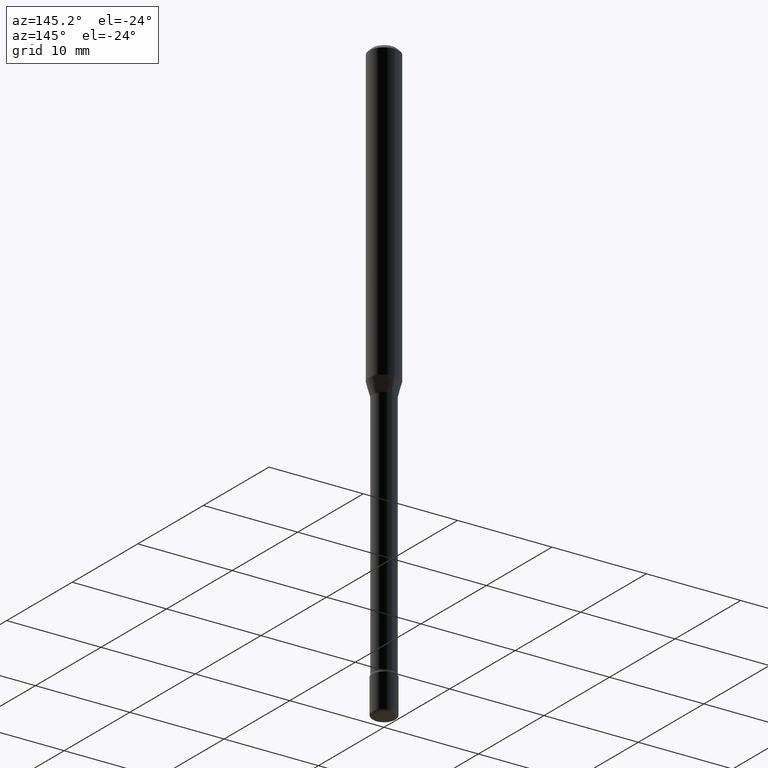
[diagram: clean part render]
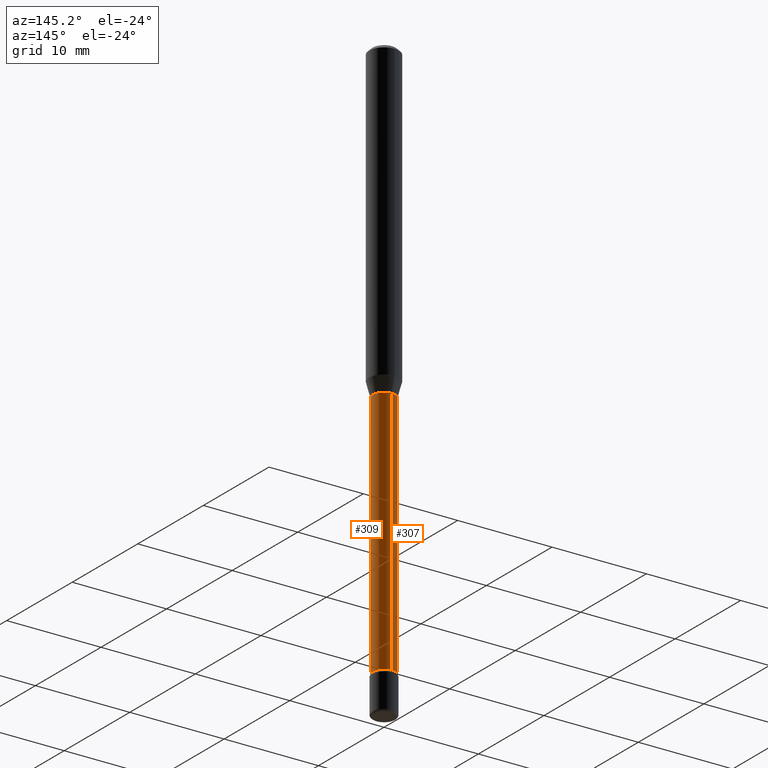
[diagram: same view with one multi-face feature highlighted, each face labeled with its STEP entity id]
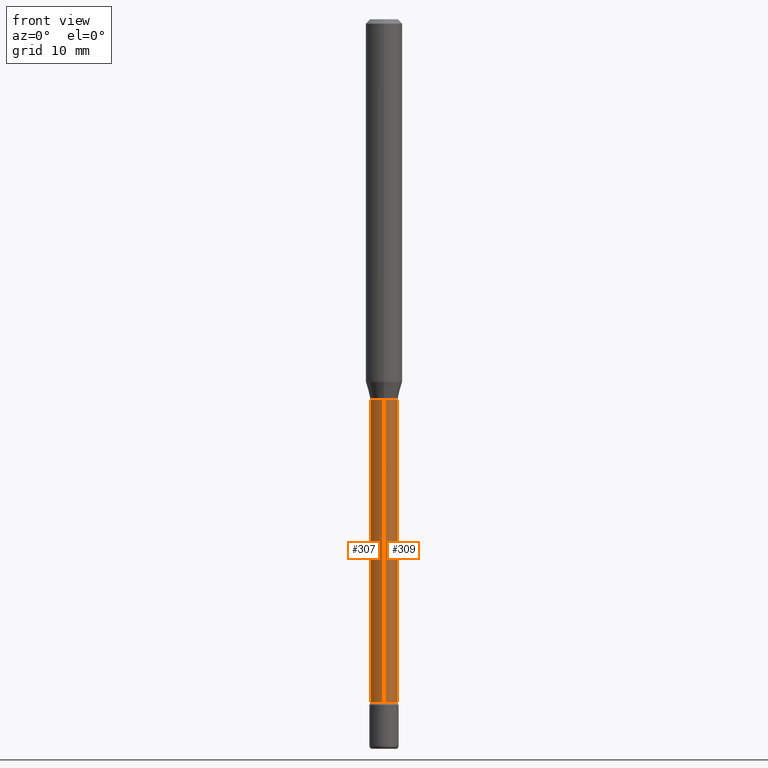
[diagram: same view with one multi-face feature highlighted, each face labeled with its STEP entity id]
A machine part, auxiliary view. The highlighted faces form ONE feature: a constant-radius fillet chain: 2 tangent blend faces with common blend radius 1.1938 mm. The faces share edges in the B-rep.
A second angle (front view) of the same feature is appended — it is thin or edge-on in the first view.
Their STEP definitions:
[1] entity #307 (Cylinder):
#8 = AXIS2_PLACEMENT_3D ( 'NONE', #29, #160, #248 ) ;
#27 = ORIENTED_EDGE ( 'NONE', *, *, #483, .T. ) ;
#28 = DIRECTION ( 'NONE',  ( -2.445484649858063703E-29, 3.491458649801748196E-15, 1.000000000000000000 ) ) ;
#29 = CARTESIAN_POINT ( 'NONE',  ( 3.183959357244965460E-29, -4.545791133514316808E-15, -1.301974787463811456 ) ) ;
#30 = AXIS2_PLACEMENT_3D ( 'NONE', #293, #28, #468 ) ;
#60 = ORIENTED_EDGE ( 'NONE', *, *, #568, .F. ) ;
#80 = CIRCLE ( 'NONE', #8, 0.04700000000000001399 ) ;
#88 = CARTESIAN_POINT ( 'NONE',  ( 3.339550858072470388E-16, 0.04700000000000000705, 3.139748423505638775E-16 ) ) ;
#96 = EDGE_CURVE ( 'NONE', #140, #508, #566, .T. ) ;
#98 = FACE_OUTER_BOUND ( 'NONE', #548, .T. ) ;
#140 = VERTEX_POINT ( 'NONE', #425 ) ;
#160 = DIRECTION ( 'NONE',  ( -2.445484649858063703E-29, 3.491458649801748196E-15, 1.000000000000000000 ) ) ;
#163 = VERTEX_POINT ( 'NONE', #378 ) ;
#176 = ORIENTED_EDGE ( 'NONE', *, *, #96, .T. ) ;
#193 = VERTEX_POINT ( 'NONE', #540 ) ;
#223 = DIRECTION ( 'NONE',  ( -2.445484649858063983E-29, 3.491458649801747802E-15, 1.000000000000000000 ) ) ;
#228 = DIRECTION ( 'NONE',  ( -2.445484649858063703E-29, 3.491458649801748196E-15, 1.000000000000000000 ) ) ;
#230 = AXIS2_PLACEMENT_3D ( 'NONE', #356, #228, #399 ) ;
#248 = DIRECTION ( 'NONE',  ( -6.982962677686265922E-15, -1.000000000000000000, 5.812442539711196222E-15 ) ) ;
#271 = VECTOR ( 'NONE', #478, 39.37007874015748143 ) ;
#293 = CARTESIAN_POINT ( 'NONE',  ( 5.724879565317726717E-29, -8.173504699185892323E-15, -2.340999999999999748 ) ) ;
#307 = ADVANCED_FACE ( 'NONE', ( #98 ), #507, .T. ) ;
#333 = LINE ( 'NONE', #436, #367 ) ;
#349 = EDGE_CURVE ( 'NONE', #163, #193, #80, .T. ) ;
#356 = CARTESIAN_POINT ( 'NONE',  ( -1.169113584055446105E-44, 1.669184350826100908E-30, 4.780733988912460139E-16 ) ) ;
#364 = ORIENTED_EDGE ( 'NONE', *, *, #349, .F. ) ;
#367 = VECTOR ( 'NONE', #223, 39.37007874015748143 ) ;
#378 = CARTESIAN_POINT ( 'NONE',  ( 3.339550858073045764E-16, 0.04699999999999546901, -1.301974787463811678 ) ) ;
#392 = LINE ( 'NONE', #88, #271 ) ;
#399 = DIRECTION ( 'NONE',  ( -6.982962677686265922E-15, -1.000000000000000000, 3.491458649801746619E-15 ) ) ;
#425 = CARTESIAN_POINT ( 'NONE',  ( 3.446132268437060393E-16, 0.04699999999999183303, -2.341000000000000192 ) ) ;
#436 = CARTESIAN_POINT ( 'NONE',  ( -3.281992458512545531E-16, -0.04700000000000000705, 6.421719554319281504E-16 ) ) ;
#437 = CARTESIAN_POINT ( 'NONE',  ( -3.281992458511972621E-16, -0.04700000000000817413, -2.340999999999999304 ) ) ;
#468 = DIRECTION ( 'NONE',  ( -6.982962677686265922E-15, -1.000000000000000000, 5.812442539711197800E-15 ) ) ;
#478 = DIRECTION ( 'NONE',  ( -2.445484649858063983E-29, 3.491458649801747802E-15, 1.000000000000000000 ) ) ;
#483 = EDGE_CURVE ( 'NONE', #508, #193, #333, .T. ) ;
#507 = CYLINDRICAL_SURFACE ( 'NONE', #230, 0.04700000000000000705 ) ;
#508 = VERTEX_POINT ( 'NONE', #437 ) ;
#540 = CARTESIAN_POINT ( 'NONE',  ( -3.281992458512227522E-16, -0.04700000000000455203, -1.301974787463811012 ) ) ;
#548 = EDGE_LOOP ( 'NONE', ( #60, #176, #27, #364 ) ) ;
#566 = CIRCLE ( 'NONE', #30, 0.04700000000000000705 ) ;
#568 = EDGE_CURVE ( 'NONE', #140, #163, #392, .T. ) ;
[2] entity #309 (Cylinder):
#1 = AXIS2_PLACEMENT_3D ( 'NONE', #22, #70, #242 ) ;
#18 = ORIENTED_EDGE ( 'NONE', *, *, #568, .T. ) ;
#22 = CARTESIAN_POINT ( 'NONE',  ( 3.183959357244965460E-29, -4.545791133514316808E-15, -1.301974787463811456 ) ) ;
#40 = EDGE_CURVE ( 'NONE', #193, #163, #79, .T. ) ;
#70 = DIRECTION ( 'NONE',  ( -2.445484649858063703E-29, 3.491458649801748196E-15, 1.000000000000000000 ) ) ;
#74 = CARTESIAN_POINT ( 'NONE',  ( 5.724879565317726717E-29, -8.173504699185892323E-15, -2.340999999999999748 ) ) ;
#79 = CIRCLE ( 'NONE', #1, 0.04700000000000001399 ) ;
#88 = CARTESIAN_POINT ( 'NONE',  ( 3.339550858072470388E-16, 0.04700000000000000705, 3.139748423505638775E-16 ) ) ;
#102 = CYLINDRICAL_SURFACE ( 'NONE', #305, 0.04700000000000000705 ) ;
#109 = EDGE_LOOP ( 'NONE', ( #288, #18, #505, #556 ) ) ;
#140 = VERTEX_POINT ( 'NONE', #425 ) ;
#146 = EDGE_CURVE ( 'NONE', #508, #140, #411, .T. ) ;
#163 = VERTEX_POINT ( 'NONE', #378 ) ;
#193 = VERTEX_POINT ( 'NONE', #540 ) ;
#203 = DIRECTION ( 'NONE',  ( -2.445484649858063703E-29, 3.491458649801748196E-15, 1.000000000000000000 ) ) ;
#223 = DIRECTION ( 'NONE',  ( -2.445484649858063983E-29, 3.491458649801747802E-15, 1.000000000000000000 ) ) ;
#242 = DIRECTION ( 'NONE',  ( -6.982962677686265922E-15, -1.000000000000000000, 5.812442539711196222E-15 ) ) ;
#268 = CARTESIAN_POINT ( 'NONE',  ( -1.169113584055446105E-44, 1.669184350826100908E-30, 4.780733988912460139E-16 ) ) ;
#271 = VECTOR ( 'NONE', #478, 39.37007874015748143 ) ;
#288 = ORIENTED_EDGE ( 'NONE', *, *, #146, .T. ) ;
#305 = AXIS2_PLACEMENT_3D ( 'NONE', #268, #450, #454 ) ;
#309 = ADVANCED_FACE ( 'NONE', ( #495 ), #102, .T. ) ;
#333 = LINE ( 'NONE', #436, #367 ) ;
#347 = AXIS2_PLACEMENT_3D ( 'NONE', #74, #203, #374 ) ;
#367 = VECTOR ( 'NONE', #223, 39.37007874015748143 ) ;
#374 = DIRECTION ( 'NONE',  ( -6.982962677686265922E-15, -1.000000000000000000, 5.812442539711197800E-15 ) ) ;
#378 = CARTESIAN_POINT ( 'NONE',  ( 3.339550858073045764E-16, 0.04699999999999546901, -1.301974787463811678 ) ) ;
#392 = LINE ( 'NONE', #88, #271 ) ;
#411 = CIRCLE ( 'NONE', #347, 0.04700000000000000705 ) ;
#425 = CARTESIAN_POINT ( 'NONE',  ( 3.446132268437060393E-16, 0.04699999999999183303, -2.341000000000000192 ) ) ;
#436 = CARTESIAN_POINT ( 'NONE',  ( -3.281992458512545531E-16, -0.04700000000000000705, 6.421719554319281504E-16 ) ) ;
#437 = CARTESIAN_POINT ( 'NONE',  ( -3.281992458511972621E-16, -0.04700000000000817413, -2.340999999999999304 ) ) ;
#450 = DIRECTION ( 'NONE',  ( -2.445484649858063703E-29, 3.491458649801748196E-15, 1.000000000000000000 ) ) ;
#454 = DIRECTION ( 'NONE',  ( -6.982962677686265922E-15, -1.000000000000000000, 3.491458649801746619E-15 ) ) ;
#478 = DIRECTION ( 'NONE',  ( -2.445484649858063983E-29, 3.491458649801747802E-15, 1.000000000000000000 ) ) ;
#483 = EDGE_CURVE ( 'NONE', #508, #193, #333, .T. ) ;
#495 = FACE_OUTER_BOUND ( 'NONE', #109, .T. ) ;
#505 = ORIENTED_EDGE ( 'NONE', *, *, #40, .F. ) ;
#508 = VERTEX_POINT ( 'NONE', #437 ) ;
#540 = CARTESIAN_POINT ( 'NONE',  ( -3.281992458512227522E-16, -0.04700000000000455203, -1.301974787463811012 ) ) ;
#556 = ORIENTED_EDGE ( 'NONE', *, *, #483, .F. ) ;
#568 = EDGE_CURVE ( 'NONE', #140, #163, #392, .T. ) ;